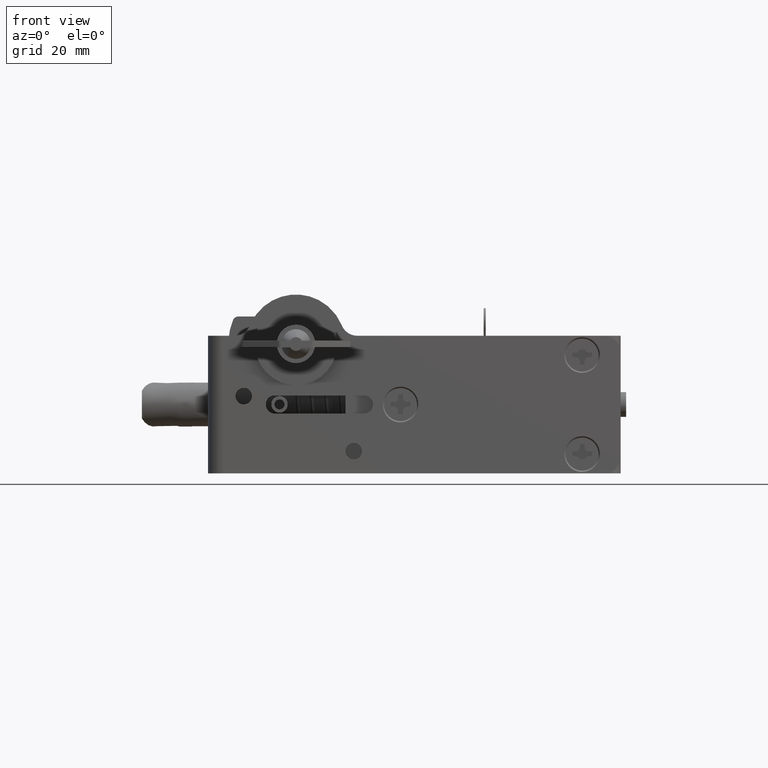
[diagram: clean part render]
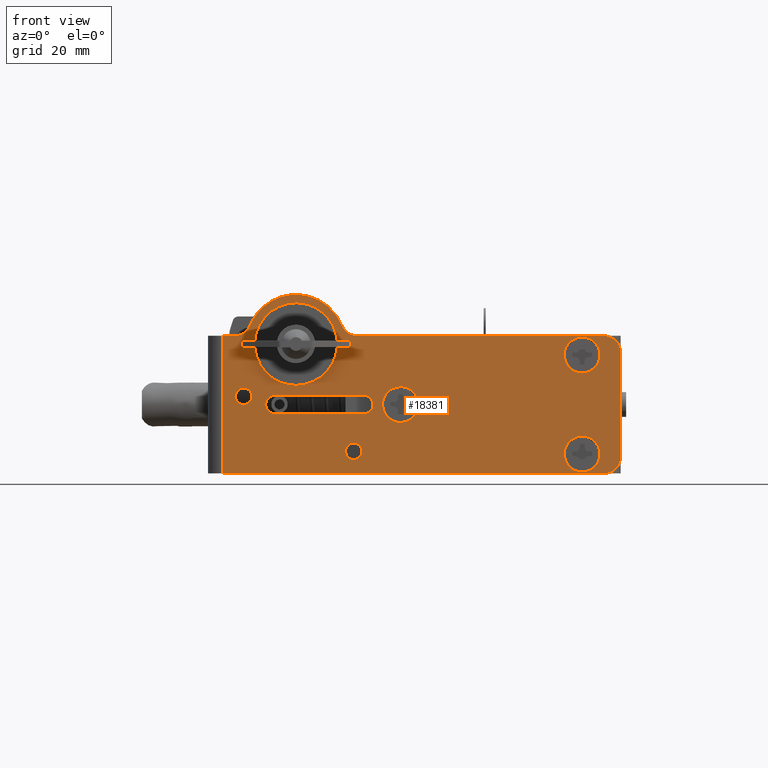
[diagram: same view with one face highlighted and labeled with its STEP entity id]
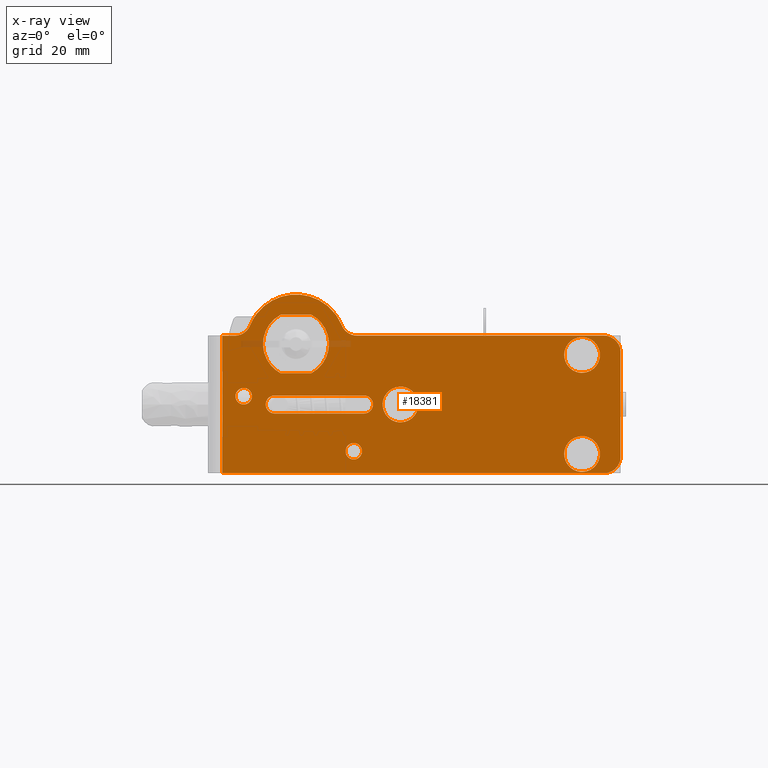
[diagram: x-ray of the same camera — body ghosted, the highlighted face saturated]
A machine part, front view. The second image highlights one B-rep face of the part: STEP entity #18381.
The next image is the same camera in x-ray: the body ghosted, the highlighted face saturated — about 1% of this face is hidden behind the body in this view.
In plain terms, the highlighted face is a freeform B-spline surface patch.
Its self-contained STEP definition (entity closure, byte-faithful):
#15167=CARTESIAN_POINT('',(20.142758417405371,-6.208973E-011,-7.957533369147205));
#15168=VERTEX_POINT('',#15167);
#15174=CARTESIAN_POINT('',(19.0,0.0,-7.750000000000000));
#15175=VERTEX_POINT('',#15174);
#15176=CARTESIAN_POINT('',(20.142758417405371,-6.208973E-011,-7.957533369147205));
#15177=CARTESIAN_POINT('',(19.590224005391093,0.0,-7.750000000000001));
#15178=CARTESIAN_POINT('',(19.0,0.0,-7.750000000000000));
#15186=(BOUNDED_CURVE()B_SPLINE_CURVE(2,(#15176,#15177,#15178),.UNSPECIFIED.,.F.,.U.)B_SPLINE_CURVE_WITH_KNOTS((3,3),(0.440284170835477,0.500000000000000),.UNSPECIFIED.)CURVE()GEOMETRIC_REPRESENTATION_ITEM()RATIONAL_B_SPLINE_CURVE((0.893499554558139,0.930038554327554,1.0))REPRESENTATION_ITEM(''));
#15187=EDGE_CURVE('',#15168,#15175,#15186,.T.);
#15189=CARTESIAN_POINT('',(15.756061905113640,-2.867962E-011,-10.801592246291889));
#15190=VERTEX_POINT('',#15189);
#15191=CARTESIAN_POINT('',(19.0,0.0,-7.750000000000000));
#15192=CARTESIAN_POINT('',(15.942705282968307,0.0,-7.750000000000000));
#15193=CARTESIAN_POINT('',(15.756061905113643,-2.867962E-011,-10.801592246291897));
#15201=(BOUNDED_CURVE()B_SPLINE_CURVE(2,(#15191,#15192,#15193),.UNSPECIFIED.,.F.,.U.)B_SPLINE_CURVE_WITH_KNOTS((3,3),(0.500000000000000,0.739332962218770),.UNSPECIFIED.)CURVE()GEOMETRIC_REPRESENTATION_ITEM()RATIONAL_B_SPLINE_CURVE((1.0,0.719603993310344,0.976072041623484))REPRESENTATION_ITEM(''));
#15202=EDGE_CURVE('',#15175,#15190,#15201,.T.);
#15297=CARTESIAN_POINT('',(19.0,0.0,-14.250000000000000));
#15298=VERTEX_POINT('',#15297);
#15299=CARTESIAN_POINT('',(15.756061905113643,-2.867962E-011,-10.801592246291891));
#15300=CARTESIAN_POINT('',(15.750000000000000,0.0,-10.900703519060913));
#15301=CARTESIAN_POINT('',(15.750000000000000,0.0,-11.0));
#15302=CARTESIAN_POINT('',(15.749999999999995,0.0,-14.249999999999998));
#15303=CARTESIAN_POINT('',(19.0,0.0,-14.250000000000000));
#15311=(BOUNDED_CURVE()B_SPLINE_CURVE(2,(#15299,#15300,#15301,#15302,#15303),.UNSPECIFIED.,.F.,.U.)B_SPLINE_CURVE_WITH_KNOTS((3,2,3),(0.739332962218770,0.750000000000000,1.0),.UNSPECIFIED.)CURVE()GEOMETRIC_REPRESENTATION_ITEM()RATIONAL_B_SPLINE_CURVE((0.976072041623483,0.987502787876203,1.0,0.707106781186547,1.0))REPRESENTATION_ITEM(''));
#15312=EDGE_CURVE('',#15190,#15298,#15311,.T.);
#15314=CARTESIAN_POINT('',(19.0,0.0,-14.250000000000000));
#15315=CARTESIAN_POINT('',(22.250000000000000,0.0,-14.249999999999998));
#15316=CARTESIAN_POINT('',(22.250000000000000,0.0,-11.0));
#15317=CARTESIAN_POINT('',(22.249999999999996,0.0,-8.749018814958795));
#15318=CARTESIAN_POINT('',(20.142758417405364,-6.208973E-011,-7.957533369147205));
#15326=(BOUNDED_CURVE()B_SPLINE_CURVE(2,(#15314,#15315,#15316,#15317,#15318),.UNSPECIFIED.,.F.,.U.)B_SPLINE_CURVE_WITH_KNOTS((3,2,3),(0.0,0.250000000000000,0.440284170835477),.UNSPECIFIED.)CURVE()GEOMETRIC_REPRESENTATION_ITEM()RATIONAL_B_SPLINE_CURVE((1.0,0.707106781186547,1.0,0.777068226858993,0.893499554558139))REPRESENTATION_ITEM(''));
#15327=EDGE_CURVE('',#15298,#15168,#15326,.T.);
#15495=CARTESIAN_POINT('',(53.142758417405368,-6.209001E-011,-16.957533369147210));
#15496=VERTEX_POINT('',#15495);
#15502=CARTESIAN_POINT('',(52.0,0.0,-16.750000000000000));
#15503=VERTEX_POINT('',#15502);
#15504=CARTESIAN_POINT('',(53.142758417405368,-6.209001E-011,-16.957533369147203));
#15505=CARTESIAN_POINT('',(52.590224005391093,0.0,-16.749999999999996));
#15506=CARTESIAN_POINT('',(52.0,0.0,-16.750000000000000));
#15514=(BOUNDED_CURVE()B_SPLINE_CURVE(2,(#15504,#15505,#15506),.UNSPECIFIED.,.F.,.U.)B_SPLINE_CURVE_WITH_KNOTS((3,3),(0.440284170835477,0.500000000000000),.UNSPECIFIED.)CURVE()GEOMETRIC_REPRESENTATION_ITEM()RATIONAL_B_SPLINE_CURVE((0.893499554558139,0.930038554327554,1.0))REPRESENTATION_ITEM(''));
#15515=EDGE_CURVE('',#15496,#15503,#15514,.T.);
#15517=CARTESIAN_POINT('',(48.756061905113640,-2.868164E-011,-19.801592246291889));
#15518=VERTEX_POINT('',#15517);
#15519=CARTESIAN_POINT('',(52.0,0.0,-16.750000000000000));
#15520=CARTESIAN_POINT('',(48.942705282968284,0.0,-16.750000000000011));
#15521=CARTESIAN_POINT('',(48.756061905113647,-2.868164E-011,-19.801592246291893));
#15529=(BOUNDED_CURVE()B_SPLINE_CURVE(2,(#15519,#15520,#15521),.UNSPECIFIED.,.F.,.U.)B_SPLINE_CURVE_WITH_KNOTS((3,3),(0.500000000000000,0.739332962218770),.UNSPECIFIED.)CURVE()GEOMETRIC_REPRESENTATION_ITEM()RATIONAL_B_SPLINE_CURVE((1.0,0.719603993310344,0.976072041623484))REPRESENTATION_ITEM(''));
#15530=EDGE_CURVE('',#15503,#15518,#15529,.T.);
#15625=CARTESIAN_POINT('',(52.0,0.0,-23.250000000000000));
#15626=VERTEX_POINT('',#15625);
#15627=CARTESIAN_POINT('',(48.756061905113633,-2.868164E-011,-19.801592246291897));
#15628=CARTESIAN_POINT('',(48.749999999999993,0.0,-19.900703519060908));
#15629=CARTESIAN_POINT('',(48.749999999999993,0.0,-20.0));
#15630=CARTESIAN_POINT('',(48.750000000000007,0.0,-23.250000000000004));
#15631=CARTESIAN_POINT('',(52.0,0.0,-23.250000000000000));
#15639=(BOUNDED_CURVE()B_SPLINE_CURVE(2,(#15627,#15628,#15629,#15630,#15631),.UNSPECIFIED.,.F.,.U.)B_SPLINE_CURVE_WITH_KNOTS((3,2,3),(0.739332962218770,0.750000000000000,1.0),.UNSPECIFIED.)CURVE()GEOMETRIC_REPRESENTATION_ITEM()RATIONAL_B_SPLINE_CURVE((0.976072041623483,0.987502787876203,1.0,0.707106781186547,1.0))REPRESENTATION_ITEM(''));
#15640=EDGE_CURVE('',#15518,#15626,#15639,.T.);
#15642=CARTESIAN_POINT('',(52.0,0.0,-23.250000000000000));
#15643=CARTESIAN_POINT('',(55.249999999999986,0.0,-23.250000000000004));
#15644=CARTESIAN_POINT('',(55.250000000000000,0.0,-20.0));
#15645=CARTESIAN_POINT('',(55.250000000000000,0.0,-17.749018814958792));
#15646=CARTESIAN_POINT('',(53.142758417405368,-6.209001E-011,-16.957533369147210));
#15654=(BOUNDED_CURVE()B_SPLINE_CURVE(2,(#15642,#15643,#15644,#15645,#15646),.UNSPECIFIED.,.F.,.U.)B_SPLINE_CURVE_WITH_KNOTS((3,2,3),(0.0,0.250000000000000,0.440284170835477),.UNSPECIFIED.)CURVE()GEOMETRIC_REPRESENTATION_ITEM()RATIONAL_B_SPLINE_CURVE((1.0,0.707106781186547,1.0,0.777068226858993,0.893499554558139))REPRESENTATION_ITEM(''));
#15655=EDGE_CURVE('',#15626,#15496,#15654,.T.);
#15823=CARTESIAN_POINT('',(53.142758417405368,-6.208934E-011,1.042466630852794));
#15824=VERTEX_POINT('',#15823);
#15830=CARTESIAN_POINT('',(52.0,0.0,1.250000000000000));
#15831=VERTEX_POINT('',#15830);
#15832=CARTESIAN_POINT('',(53.142758417405375,-6.208934E-011,1.042466630852794));
#15833=CARTESIAN_POINT('',(52.590224005391100,0.0,1.250000000000000));
#15834=CARTESIAN_POINT('',(52.0,0.0,1.250000000000000));
#15842=(BOUNDED_CURVE()B_SPLINE_CURVE(2,(#15832,#15833,#15834),.UNSPECIFIED.,.F.,.U.)B_SPLINE_CURVE_WITH_KNOTS((3,3),(0.440284170835477,0.500000000000000),.UNSPECIFIED.)CURVE()GEOMETRIC_REPRESENTATION_ITEM()RATIONAL_B_SPLINE_CURVE((0.893499554558139,0.930038554327554,1.0))REPRESENTATION_ITEM(''));
#15843=EDGE_CURVE('',#15824,#15831,#15842,.T.);
#15845=CARTESIAN_POINT('',(48.756061905113640,-2.868174E-011,-1.801592246291896));
#15846=VERTEX_POINT('',#15845);
#15847=CARTESIAN_POINT('',(52.0,0.0,1.250000000000000));
#15848=CARTESIAN_POINT('',(48.942705282968284,0.0,1.250000000000000));
#15849=CARTESIAN_POINT('',(48.756061905113647,-2.868174E-011,-1.801592246291896));
#15857=(BOUNDED_CURVE()B_SPLINE_CURVE(2,(#15847,#15848,#15849),.UNSPECIFIED.,.F.,.U.)B_SPLINE_CURVE_WITH_KNOTS((3,3),(0.500000000000000,0.739332962218770),.UNSPECIFIED.)CURVE()GEOMETRIC_REPRESENTATION_ITEM()RATIONAL_B_SPLINE_CURVE((1.0,0.719603993310344,0.976072041623484))REPRESENTATION_ITEM(''));
#15858=EDGE_CURVE('',#15831,#15846,#15857,.T.);
#15953=CARTESIAN_POINT('',(52.0,0.0,-5.249999999999999));
#15954=VERTEX_POINT('',#15953);
#15955=CARTESIAN_POINT('',(48.756061905113640,-2.868174E-011,-1.801592246291897));
#15956=CARTESIAN_POINT('',(48.749999999999993,0.0,-1.900703519060907));
#15957=CARTESIAN_POINT('',(48.749999999999993,0.0,-2.0));
#15958=CARTESIAN_POINT('',(48.750000000000007,0.0,-5.249999999999998));
#15959=CARTESIAN_POINT('',(52.0,0.0,-5.249999999999999));
#15967=(BOUNDED_CURVE()B_SPLINE_CURVE(2,(#15955,#15956,#15957,#15958,#15959),.UNSPECIFIED.,.F.,.U.)B_SPLINE_CURVE_WITH_KNOTS((3,2,3),(0.739332962218770,0.750000000000000,1.0),.UNSPECIFIED.)CURVE()GEOMETRIC_REPRESENTATION_ITEM()RATIONAL_B_SPLINE_CURVE((0.976072041623483,0.987502787876203,1.0,0.707106781186547,1.0))REPRESENTATION_ITEM(''));
#15968=EDGE_CURVE('',#15846,#15954,#15967,.T.);
#15970=CARTESIAN_POINT('',(52.0,0.0,-5.249999999999999));
#15971=CARTESIAN_POINT('',(55.249999999999986,0.0,-5.249999999999998));
#15972=CARTESIAN_POINT('',(55.250000000000000,0.0,-2.0));
#15973=CARTESIAN_POINT('',(55.249999999999993,0.0,0.250981185041204));
#15974=CARTESIAN_POINT('',(53.142758417405375,-6.208934E-011,1.042466630852794));
#15982=(BOUNDED_CURVE()B_SPLINE_CURVE(2,(#15970,#15971,#15972,#15973,#15974),.UNSPECIFIED.,.F.,.U.)B_SPLINE_CURVE_WITH_KNOTS((3,2,3),(0.0,0.250000000000000,0.440284170835477),.UNSPECIFIED.)CURVE()GEOMETRIC_REPRESENTATION_ITEM()RATIONAL_B_SPLINE_CURVE((1.0,0.707106781186547,1.0,0.777068226858994,0.893499554558139))REPRESENTATION_ITEM(''));
#15983=EDGE_CURVE('',#15954,#15824,#15982,.T.);
#16168=CARTESIAN_POINT('',(-8.004623999432271,-9.020562E-017,-9.617688643999145));
#16169=VERTEX_POINT('',#16168);
#16175=CARTESIAN_POINT('',(-9.499999999999901,0.0,-8.0));
#16176=VERTEX_POINT('',#16175);
#16177=CARTESIAN_POINT('',(-8.004623999432273,-9.020562E-017,-9.617688643999145));
#16178=CARTESIAN_POINT('',(-7.999999999999901,0.0,-9.558935160920772));
#16179=CARTESIAN_POINT('',(-7.999999999999901,0.0,-9.500000000000000));
#16180=CARTESIAN_POINT('',(-7.999999999999902,0.0,-8.0));
#16181=CARTESIAN_POINT('',(-9.499999999999901,0.0,-8.0));
#16189=(BOUNDED_CURVE()B_SPLINE_CURVE(2,(#16177,#16178,#16179,#16180,#16181),.UNSPECIFIED.,.F.,.U.)B_SPLINE_CURVE_WITH_KNOTS((3,2,3),(0.736331300539366,0.750000000000000,1.0),.UNSPECIFIED.)CURVE()GEOMETRIC_REPRESENTATION_ITEM()RATIONAL_B_SPLINE_CURVE((0.969723355976896,0.983986122471925,1.0,0.707106781186548,1.0))REPRESENTATION_ITEM(''));
#16190=EDGE_CURVE('',#16169,#16176,#16189,.T.);
#16192=CARTESIAN_POINT('',(-10.995376000567530,-9.020562E-017,-9.382311356000855));
#16193=VERTEX_POINT('',#16192);
#16194=CARTESIAN_POINT('',(-9.499999999999901,0.0,-8.0));
#16195=CARTESIAN_POINT('',(-10.886585736729396,0.0,-8.0));
#16196=CARTESIAN_POINT('',(-10.995376000567534,-9.020562E-017,-9.382311356000855));
#16204=(BOUNDED_CURVE()B_SPLINE_CURVE(2,(#16194,#16195,#16196),.UNSPECIFIED.,.F.,.U.)B_SPLINE_CURVE_WITH_KNOTS((3,3),(0.0,0.236331300539366),.UNSPECIFIED.)CURVE()GEOMETRIC_REPRESENTATION_ITEM()RATIONAL_B_SPLINE_CURVE((1.0,0.723120658714622,0.969723355976896))REPRESENTATION_ITEM(''));
#16205=EDGE_CURVE('',#16176,#16193,#16204,.T.);
#16251=CARTESIAN_POINT('',(-9.499999999999901,0.0,-11.0));
#16252=VERTEX_POINT('',#16251);
#16253=CARTESIAN_POINT('',(-10.995376000567534,-9.020562E-017,-9.382311356000855));
#16254=CARTESIAN_POINT('',(-10.999999999999897,0.0,-9.441064839079230));
#16255=CARTESIAN_POINT('',(-10.999999999999901,0.0,-9.500000000000000));
#16256=CARTESIAN_POINT('',(-10.999999999999901,0.0,-11.0));
#16257=CARTESIAN_POINT('',(-9.499999999999901,0.0,-11.0));
#16265=(BOUNDED_CURVE()B_SPLINE_CURVE(2,(#16253,#16254,#16255,#16256,#16257),.UNSPECIFIED.,.F.,.U.)B_SPLINE_CURVE_WITH_KNOTS((3,2,3),(0.236331300539367,0.250000000000000,0.500000000000000),.UNSPECIFIED.)CURVE()GEOMETRIC_REPRESENTATION_ITEM()RATIONAL_B_SPLINE_CURVE((0.969723355976896,0.983986122471926,1.0,0.707106781186548,1.0))REPRESENTATION_ITEM(''));
#16266=EDGE_CURVE('',#16193,#16252,#16265,.T.);
#16268=CARTESIAN_POINT('',(-9.499999999999901,0.0,-11.0));
#16269=CARTESIAN_POINT('',(-8.113414263270398,0.0,-11.0));
#16270=CARTESIAN_POINT('',(-8.004623999432271,-9.020562E-017,-9.617688643999145));
#16278=(BOUNDED_CURVE()B_SPLINE_CURVE(2,(#16268,#16269,#16270),.UNSPECIFIED.,.F.,.U.)B_SPLINE_CURVE_WITH_KNOTS((3,3),(0.500000000000000,0.736331300539367),.UNSPECIFIED.)CURVE()GEOMETRIC_REPRESENTATION_ITEM()RATIONAL_B_SPLINE_CURVE((1.0,0.723120658714621,0.969723355976898))REPRESENTATION_ITEM(''));
#16279=EDGE_CURVE('',#16252,#16169,#16278,.T.);
#16350=CARTESIAN_POINT('',(11.995376000567630,-9.020562E-017,-19.617688643999148));
#16351=VERTEX_POINT('',#16350);
#16357=CARTESIAN_POINT('',(10.500000000000000,0.0,-18.0));
#16358=VERTEX_POINT('',#16357);
#16359=CARTESIAN_POINT('',(11.995376000567633,-9.020562E-017,-19.617688643999148));
#16360=CARTESIAN_POINT('',(11.999999999999996,0.0,-19.558935160920768));
#16361=CARTESIAN_POINT('',(12.0,0.0,-19.500000000000000));
#16362=CARTESIAN_POINT('',(12.0,0.0,-18.000000000000007));
#16363=CARTESIAN_POINT('',(10.500000000000000,0.0,-18.0));
#16371=(BOUNDED_CURVE()B_SPLINE_CURVE(2,(#16359,#16360,#16361,#16362,#16363),.UNSPECIFIED.,.F.,.U.)B_SPLINE_CURVE_WITH_KNOTS((3,2,3),(0.736331300539366,0.750000000000000,1.0),.UNSPECIFIED.)CURVE()GEOMETRIC_REPRESENTATION_ITEM()RATIONAL_B_SPLINE_CURVE((0.969723355976896,0.983986122471925,1.0,0.707106781186548,1.0))REPRESENTATION_ITEM(''));
#16372=EDGE_CURVE('',#16351,#16358,#16371,.T.);
#16374=CARTESIAN_POINT('',(9.004623999432372,-9.020562E-017,-19.382311356000859));
#16375=VERTEX_POINT('',#16374);
#16376=CARTESIAN_POINT('',(10.500000000000000,0.0,-18.0));
#16377=CARTESIAN_POINT('',(9.113414263270506,0.0,-17.999999999999996));
#16378=CARTESIAN_POINT('',(9.004623999432372,-9.020562E-017,-19.382311356000859));
#16386=(BOUNDED_CURVE()B_SPLINE_CURVE(2,(#16376,#16377,#16378),.UNSPECIFIED.,.F.,.U.)B_SPLINE_CURVE_WITH_KNOTS((3,3),(0.0,0.236331300539366),.UNSPECIFIED.)CURVE()GEOMETRIC_REPRESENTATION_ITEM()RATIONAL_B_SPLINE_CURVE((1.0,0.723120658714622,0.969723355976896))REPRESENTATION_ITEM(''));
#16387=EDGE_CURVE('',#16358,#16375,#16386,.T.);
#16433=CARTESIAN_POINT('',(10.500000000000000,0.0,-21.0));
#16434=VERTEX_POINT('',#16433);
#16435=CARTESIAN_POINT('',(9.004623999432372,-9.020562E-017,-19.382311356000859));
#16436=CARTESIAN_POINT('',(9.0,0.0,-19.441064839079225));
#16437=CARTESIAN_POINT('',(9.000000000000002,0.0,-19.500000000000000));
#16438=CARTESIAN_POINT('',(9.000000000000002,0.0,-21.000000000000004));
#16439=CARTESIAN_POINT('',(10.500000000000000,0.0,-21.0));
#16447=(BOUNDED_CURVE()B_SPLINE_CURVE(2,(#16435,#16436,#16437,#16438,#16439),.UNSPECIFIED.,.F.,.U.)B_SPLINE_CURVE_WITH_KNOTS((3,2,3),(0.236331300539366,0.250000000000000,0.500000000000000),.UNSPECIFIED.)CURVE()GEOMETRIC_REPRESENTATION_ITEM()RATIONAL_B_SPLINE_CURVE((0.969723355976896,0.983986122471925,1.0,0.707106781186548,1.0))REPRESENTATION_ITEM(''));
#16448=EDGE_CURVE('',#16375,#16434,#16447,.T.);
#16450=CARTESIAN_POINT('',(10.500000000000000,0.0,-21.0));
#16451=CARTESIAN_POINT('',(11.886585736729504,0.0,-20.999999999999996));
#16452=CARTESIAN_POINT('',(11.995376000567628,-9.020562E-017,-19.617688643999145));
#16460=(BOUNDED_CURVE()B_SPLINE_CURVE(2,(#16450,#16451,#16452),.UNSPECIFIED.,.F.,.U.)B_SPLINE_CURVE_WITH_KNOTS((3,3),(0.500000000000000,0.736331300539367),.UNSPECIFIED.)CURVE()GEOMETRIC_REPRESENTATION_ITEM()RATIONAL_B_SPLINE_CURVE((1.0,0.723120658714621,0.969723355976898))REPRESENTATION_ITEM(''));
#16461=EDGE_CURVE('',#16434,#16351,#16460,.T.);
#17238=CARTESIAN_POINT('',(-13.400000000000000,0.0,-23.500000000000000));
#17239=VERTEX_POINT('',#17238);
#17255=CARTESIAN_POINT('',(-13.400000000000000,0.0,1.500000000000000));
#17256=VERTEX_POINT('',#17255);
#17257=CARTESIAN_POINT('',(-13.400000000000000,0.0,1.500000000000000));
#17258=CARTESIAN_POINT('',(-13.400000000000000,0.0,-23.500000000000000));
#17259=QUASI_UNIFORM_CURVE('',1,(#17257,#17258),.UNSPECIFIED.,.F.,.U.);
#17260=EDGE_CURVE('',#17256,#17239,#17259,.T.);
#17322=CARTESIAN_POINT('',(-3.854455714975485,0.0,-9.350005999999810));
#17323=VERTEX_POINT('',#17322);
#17329=CARTESIAN_POINT('',(-3.854455715080875,0.0,-12.649993999999900));
#17330=VERTEX_POINT('',#17329);
#17331=CARTESIAN_POINT('',(-3.854455714975484,0.0,-9.350005999999807));
#17332=CARTESIAN_POINT('',(-5.500005999947242,0.0,-9.354443731134762));
#17333=CARTESIAN_POINT('',(-5.500005999999796,0.0,-10.999999999947301));
#17334=CARTESIAN_POINT('',(-5.500006000052349,0.0,-12.645556268759844));
#17335=CARTESIAN_POINT('',(-3.854455715080874,0.0,-12.649993999999911));
#17343=(BOUNDED_CURVE()B_SPLINE_CURVE(2,(#17331,#17332,#17333,#17334,#17335),.UNSPECIFIED.,.F.,.U.)B_SPLINE_CURVE_WITH_KNOTS((3,2,3),(0.0,0.500000000000000,1.0),.UNSPECIFIED.)CURVE()GEOMETRIC_REPRESENTATION_ITEM()RATIONAL_B_SPLINE_CURVE((1.0,0.708059600947159,1.0,0.708059600947159,1.0))REPRESENTATION_ITEM(''));
#17344=EDGE_CURVE('',#17323,#17330,#17343,.T.);
#17366=CARTESIAN_POINT('',(12.354455714975900,0.0,-9.350005999999810));
#17367=VERTEX_POINT('',#17366);
#17373=CARTESIAN_POINT('',(12.354455714975900,0.0,-9.350005999999810));
#17374=CARTESIAN_POINT('',(-3.854455714975485,0.0,-9.350005999999810));
#17375=QUASI_UNIFORM_CURVE('',1,(#17373,#17374),.UNSPECIFIED.,.F.,.U.);
#17376=EDGE_CURVE('',#17367,#17323,#17375,.T.);
#17417=CARTESIAN_POINT('',(12.354455715081301,0.0,-12.649993999999900));
#17418=VERTEX_POINT('',#17417);
#17424=CARTESIAN_POINT('',(12.354455715081301,0.0,-12.649993999999911));
#17425=CARTESIAN_POINT('',(14.000006000052760,0.0,-12.645556268759828));
#17426=CARTESIAN_POINT('',(14.000006000000200,0.0,-10.999999999947301));
#17427=CARTESIAN_POINT('',(14.000005999947639,0.0,-9.354443731134772));
#17428=CARTESIAN_POINT('',(12.354455714975900,0.0,-9.350005999999807));
#17436=(BOUNDED_CURVE()B_SPLINE_CURVE(2,(#17424,#17425,#17426,#17427,#17428),.UNSPECIFIED.,.F.,.U.)B_SPLINE_CURVE_WITH_KNOTS((3,2,3),(0.0,0.500000000000000,1.0),.UNSPECIFIED.)CURVE()GEOMETRIC_REPRESENTATION_ITEM()RATIONAL_B_SPLINE_CURVE((1.0,0.708059600947162,1.0,0.708059600947162,1.0))REPRESENTATION_ITEM(''));
#17437=EDGE_CURVE('',#17418,#17367,#17436,.T.);
#17454=CARTESIAN_POINT('',(-3.854455715080875,0.0,-12.649993999999900));
#17455=CARTESIAN_POINT('',(12.354455715081301,0.0,-12.649993999999900));
#17456=QUASI_UNIFORM_CURVE('',1,(#17454,#17455),.UNSPECIFIED.,.F.,.U.);
#17457=EDGE_CURVE('',#17330,#17418,#17456,.T.);
#17599=CARTESIAN_POINT('',(2.812468465788615,0.0,-5.300001993296291));
#17600=VERTEX_POINT('',#17599);
#17601=CARTESIAN_POINT('',(2.812472352593505,0.0,5.299999930745020));
#17602=VERTEX_POINT('',#17601);
#17603=CARTESIAN_POINT('',(2.812468465788614,0.0,-5.300001993296291));
#17604=CARTESIAN_POINT('',(5.999998676827532,0.0,-3.608525610148766));
#17605=CARTESIAN_POINT('',(5.999999999999597,0.0,-0.000002200077838));
#17606=CARTESIAN_POINT('',(6.000001323171661,0.0,3.608521209993084));
#17607=CARTESIAN_POINT('',(2.812472352593505,0.0,5.299999930745015));
#17615=(BOUNDED_CURVE()B_SPLINE_CURVE(2,(#17603,#17604,#17605,#17606,#17607),.UNSPECIFIED.,.F.,.U.)B_SPLINE_CURVE_WITH_KNOTS((3,2,3),(0.0,0.500000000000000,1.0),.UNSPECIFIED.)CURVE()GEOMETRIC_REPRESENTATION_ITEM()RATIONAL_B_SPLINE_CURVE((1.0,0.856955386294567,1.0,0.856955386294567,1.0))REPRESENTATION_ITEM(''));
#17616=EDGE_CURVE('',#17600,#17602,#17615,.T.);
#17655=CARTESIAN_POINT('',(-2.812471242564055,0.0,-5.300000519787729));
#17656=VERTEX_POINT('',#17655);
#17657=CARTESIAN_POINT('',(-2.812471242564055,0.0,-5.300000519787729));
#17658=CARTESIAN_POINT('',(2.812468465788615,0.0,-5.300001993296291));
#17659=QUASI_UNIFORM_CURVE('',1,(#17657,#17658),.UNSPECIFIED.,.F.,.U.);
#17660=EDGE_CURVE('',#17656,#17600,#17659,.T.);
#17692=CARTESIAN_POINT('',(-2.812472167588605,0.0,5.300000028918820));
#17693=VERTEX_POINT('',#17692);
#17694=CARTESIAN_POINT('',(-2.812472167588603,0.0,5.300000028918817));
#17695=CARTESIAN_POINT('',(-6.000000314902962,0.0,3.608521887633656));
#17696=CARTESIAN_POINT('',(-5.999999999999978,0.0,-0.000000523598773));
#17697=CARTESIAN_POINT('',(-5.999999685096993,0.0,-3.608522934831204));
#17698=CARTESIAN_POINT('',(-2.812471242564056,0.0,-5.300000519787729));
#17706=(BOUNDED_CURVE()B_SPLINE_CURVE(2,(#17694,#17695,#17696,#17697,#17698),.UNSPECIFIED.,.F.,.U.)B_SPLINE_CURVE_WITH_KNOTS((3,2,3),(0.0,0.500000000000000,1.0),.UNSPECIFIED.)CURVE()GEOMETRIC_REPRESENTATION_ITEM()RATIONAL_B_SPLINE_CURVE((1.0,0.856955449302760,1.0,0.856955449302760,1.0))REPRESENTATION_ITEM(''));
#17707=EDGE_CURVE('',#17693,#17656,#17706,.T.);
#17740=CARTESIAN_POINT('',(2.812472352593505,0.0,5.299999930745020));
#17741=CARTESIAN_POINT('',(-2.812472167588605,0.0,5.300000028918820));
#17742=QUASI_UNIFORM_CURVE('',1,(#17740,#17741),.UNSPECIFIED.,.F.,.U.);
#17743=EDGE_CURVE('',#17602,#17693,#17742,.T.);
#17896=CARTESIAN_POINT('',(59.0,0.0,-20.500000000000000));
#17897=VERTEX_POINT('',#17896);
#17903=CARTESIAN_POINT('',(55.999999842920602,0.0,-23.500000000000000));
#17904=VERTEX_POINT('',#17903);
#17905=CARTESIAN_POINT('',(55.999999842920602,0.0,-23.500000000000000));
#17906=CARTESIAN_POINT('',(57.242640576047386,0.0,-23.500000065064420));
#17907=CARTESIAN_POINT('',(58.121320288023682,0.0,-22.621320399095602));
#17908=CARTESIAN_POINT('',(59.000000000000007,0.0,-21.742640733126780));
#17909=CARTESIAN_POINT('',(59.000000000000007,0.0,-20.500000000000000));
#17917=(BOUNDED_CURVE()B_SPLINE_CURVE(2,(#17905,#17906,#17907,#17908,#17909),.UNSPECIFIED.,.F.,.U.)B_SPLINE_CURVE_WITH_KNOTS((3,2,3),(0.0,0.500000000000000,1.0),.UNSPECIFIED.)CURVE()GEOMETRIC_REPRESENTATION_ITEM()RATIONAL_B_SPLINE_CURVE((1.0,0.923879527501979,1.0,0.923879527501979,1.0))REPRESENTATION_ITEM(''));
#17918=EDGE_CURVE('',#17904,#17897,#17917,.T.);
#17941=CARTESIAN_POINT('',(59.0,0.0,-1.500000000000000));
#17942=VERTEX_POINT('',#17941);
#17948=CARTESIAN_POINT('',(59.0,0.0,-1.500000000000000));
#17949=CARTESIAN_POINT('',(59.0,0.0,-20.500000000000000));
#17950=QUASI_UNIFORM_CURVE('',1,(#17948,#17949),.UNSPECIFIED.,.F.,.U.);
#17951=EDGE_CURVE('',#17942,#17897,#17950,.T.);
#17985=CARTESIAN_POINT('',(56.0,0.0,1.500000000000000));
#17986=VERTEX_POINT('',#17985);
#17992=CARTESIAN_POINT('',(59.000000000000007,0.0,-1.500000000000000));
#17993=CARTESIAN_POINT('',(59.0,0.0,1.500000000000000));
#17994=CARTESIAN_POINT('',(56.0,0.0,1.500000000000000));
#18002=(BOUNDED_CURVE()B_SPLINE_CURVE(2,(#17992,#17993,#17994),.UNSPECIFIED.,.F.,.U.)CURVE()GEOMETRIC_REPRESENTATION_ITEM()QUASI_UNIFORM_CURVE()RATIONAL_B_SPLINE_CURVE((1.0,0.707106781186548,1.0))REPRESENTATION_ITEM(''));
#18003=EDGE_CURVE('',#17942,#17986,#18002,.T.);
#18022=CARTESIAN_POINT('',(11.124297842920360,0.0,1.500000000000000));
#18023=VERTEX_POINT('',#18022);
#18029=CARTESIAN_POINT('',(11.124297842920360,0.0,1.500000000000000));
#18030=CARTESIAN_POINT('',(56.0,0.0,1.500000000000000));
#18031=QUASI_UNIFORM_CURVE('',1,(#18029,#18030),.UNSPECIFIED.,.F.,.U.);
#18032=EDGE_CURVE('',#18023,#17986,#18031,.T.);
#18067=CARTESIAN_POINT('',(8.343223347288470,0.0,3.374999878112665));
#18068=VERTEX_POINT('',#18067);
#18074=CARTESIAN_POINT('',(8.343223347288470,0.0,3.374999878112665));
#18075=CARTESIAN_POINT('',(9.101698391932979,0.0,1.500000105903067));
#18076=CARTESIAN_POINT('',(11.124297842920360,0.0,1.500000000000004));
#18084=(BOUNDED_CURVE()B_SPLINE_CURVE(2,(#18074,#18075,#18076),.UNSPECIFIED.,.F.,.U.)CURVE()GEOMETRIC_REPRESENTATION_ITEM()QUASI_UNIFORM_CURVE()RATIONAL_B_SPLINE_CURVE((1.0,0.829156215063090,1.0))REPRESENTATION_ITEM(''));
#18085=EDGE_CURVE('',#18068,#18023,#18084,.T.);
#18125=CARTESIAN_POINT('',(-8.343223524003038,0.0,3.374999441262525));
#18126=VERTEX_POINT('',#18125);
#18132=CARTESIAN_POINT('',(8.343223347288472,0.0,3.374999878112667));
#18133=CARTESIAN_POINT('',(6.067798793532807,0.0,9.000000158854597));
#18134=CARTESIAN_POINT('',(-0.000000235619442,0.0,8.999999999999996));
#18135=CARTESIAN_POINT('',(-6.067799264771691,0.0,8.999999841145396));
#18136=CARTESIAN_POINT('',(-8.343223524003037,0.0,3.374999441262523));
#18144=(BOUNDED_CURVE()B_SPLINE_CURVE(2,(#18132,#18133,#18134,#18135,#18136),.UNSPECIFIED.,.F.,.U.)B_SPLINE_CURVE_WITH_KNOTS((3,2,3),(0.0,0.500000000000000,1.0),.UNSPECIFIED.)CURVE()GEOMETRIC_REPRESENTATION_ITEM()RATIONAL_B_SPLINE_CURVE((1.0,0.829156186187955,1.0,0.829156186187955,1.0))REPRESENTATION_ITEM(''));
#18145=EDGE_CURVE('',#18068,#18126,#18144,.T.);
#18181=CARTESIAN_POINT('',(-11.124297999999900,0.0,1.500000000000000));
#18182=VERTEX_POINT('',#18181);
#18188=CARTESIAN_POINT('',(-11.124297999999900,0.0,1.500000000000000));
#18189=CARTESIAN_POINT('',(-9.101698777491947,0.0,1.499999999999999));
#18190=CARTESIAN_POINT('',(-8.343223524003038,0.0,3.374999441262525));
#18198=(BOUNDED_CURVE()B_SPLINE_CURVE(2,(#18188,#18189,#18190),.UNSPECIFIED.,.F.,.U.)CURVE()GEOMETRIC_REPRESENTATION_ITEM()QUASI_UNIFORM_CURVE()RATIONAL_B_SPLINE_CURVE((1.0,0.829156244333146,1.0))REPRESENTATION_ITEM(''));
#18199=EDGE_CURVE('',#18182,#18126,#18198,.T.);
#18223=CARTESIAN_POINT('',(-13.400000000000000,0.0,1.500000000000000));
#18224=CARTESIAN_POINT('',(-11.124297999999900,0.0,1.500000000000000));
#18225=QUASI_UNIFORM_CURVE('',1,(#18223,#18224),.UNSPECIFIED.,.F.,.U.);
#18226=EDGE_CURVE('',#17256,#18182,#18225,.T.);
#18244=CARTESIAN_POINT('',(55.999999842920602,0.0,-23.500000000000000));
#18245=CARTESIAN_POINT('',(-13.400000000000000,0.0,-23.500000000000000));
#18246=QUASI_UNIFORM_CURVE('',1,(#18244,#18245),.UNSPECIFIED.,.F.,.U.);
#18247=EDGE_CURVE('',#17904,#17239,#18246,.T.);
#18322=CARTESIAN_POINT('',(-17.016379859674760,0.0,10.623374937008601));
#18323=CARTESIAN_POINT('',(62.616381801594081,0.0,10.623374937008601));
#18324=CARTESIAN_POINT('',(-17.016379859674760,0.0,-25.123375808726621));
#18325=CARTESIAN_POINT('',(62.616381801594081,0.0,-25.123375808726621));
#18326=B_SPLINE_SURFACE_WITH_KNOTS('',1,1,((#18322,#18324),(#18323,#18325)),.UNSPECIFIED.,.F.,.F.,.U.,(2,2),(2,2),(0.0,79.632761661268844),(0.0,35.746750745735220),.UNSPECIFIED.);
#18327=ORIENTED_EDGE('',*,*,#18226,.F.);
#18328=ORIENTED_EDGE('',*,*,#17260,.T.);
#18329=ORIENTED_EDGE('',*,*,#18247,.F.);
#18330=ORIENTED_EDGE('',*,*,#17918,.T.);
#18331=ORIENTED_EDGE('',*,*,#17951,.F.);
#18332=ORIENTED_EDGE('',*,*,#18003,.T.);
#18333=ORIENTED_EDGE('',*,*,#18032,.F.);
#18334=ORIENTED_EDGE('',*,*,#18085,.F.);
#18335=ORIENTED_EDGE('',*,*,#18145,.T.);
#18336=ORIENTED_EDGE('',*,*,#18199,.F.);
#18337=EDGE_LOOP('',(#18327,#18328,#18329,#18330,#18331,#18332,#18333,#18334,#18335,#18336));
#18338=FACE_OUTER_BOUND('',#18337,.T.);
#18339=ORIENTED_EDGE('',*,*,#17437,.F.);
#18340=ORIENTED_EDGE('',*,*,#17457,.F.);
#18341=ORIENTED_EDGE('',*,*,#17344,.F.);
#18342=ORIENTED_EDGE('',*,*,#17376,.F.);
#18343=EDGE_LOOP('',(#18339,#18340,#18341,#18342));
#18344=FACE_BOUND('',#18343,.T.);
#18345=ORIENTED_EDGE('',*,*,#17743,.F.);
#18346=ORIENTED_EDGE('',*,*,#17616,.F.);
#18347=ORIENTED_EDGE('',*,*,#17660,.F.);
#18348=ORIENTED_EDGE('',*,*,#17707,.F.);
#18349=EDGE_LOOP('',(#18345,#18346,#18347,#18348));
#18350=FACE_BOUND('',#18349,.T.);
#18351=ORIENTED_EDGE('',*,*,#16461,.F.);
#18352=ORIENTED_EDGE('',*,*,#16448,.F.);
#18353=ORIENTED_EDGE('',*,*,#16387,.F.);
#18354=ORIENTED_EDGE('',*,*,#16372,.F.);
#18355=EDGE_LOOP('',(#18351,#18352,#18353,#18354));
#18356=FACE_BOUND('',#18355,.T.);
#18357=ORIENTED_EDGE('',*,*,#16279,.F.);
#18358=ORIENTED_EDGE('',*,*,#16266,.F.);
#18359=ORIENTED_EDGE('',*,*,#16205,.F.);
#18360=ORIENTED_EDGE('',*,*,#16190,.F.);
#18361=EDGE_LOOP('',(#18357,#18358,#18359,#18360));
#18362=FACE_BOUND('',#18361,.T.);
#18363=ORIENTED_EDGE('',*,*,#15858,.F.);
#18364=ORIENTED_EDGE('',*,*,#15843,.F.);
#18365=ORIENTED_EDGE('',*,*,#15983,.F.);
#18366=ORIENTED_EDGE('',*,*,#15968,.F.);
#18367=EDGE_LOOP('',(#18363,#18364,#18365,#18366));
#18368=FACE_BOUND('',#18367,.T.);
#18369=ORIENTED_EDGE('',*,*,#15530,.F.);
#18370=ORIENTED_EDGE('',*,*,#15515,.F.);
#18371=ORIENTED_EDGE('',*,*,#15655,.F.);
#18372=ORIENTED_EDGE('',*,*,#15640,.F.);
#18373=EDGE_LOOP('',(#18369,#18370,#18371,#18372));
#18374=FACE_BOUND('',#18373,.T.);
#18375=ORIENTED_EDGE('',*,*,#15202,.F.);
#18376=ORIENTED_EDGE('',*,*,#15187,.F.);
#18377=ORIENTED_EDGE('',*,*,#15327,.F.);
#18378=ORIENTED_EDGE('',*,*,#15312,.F.);
#18379=EDGE_LOOP('',(#18375,#18376,#18377,#18378));
#18380=FACE_BOUND('',#18379,.T.);
#18381=ADVANCED_FACE('',(#18338,#18344,#18350,#18356,#18362,#18368,#18374,#18380),#18326,.F.);